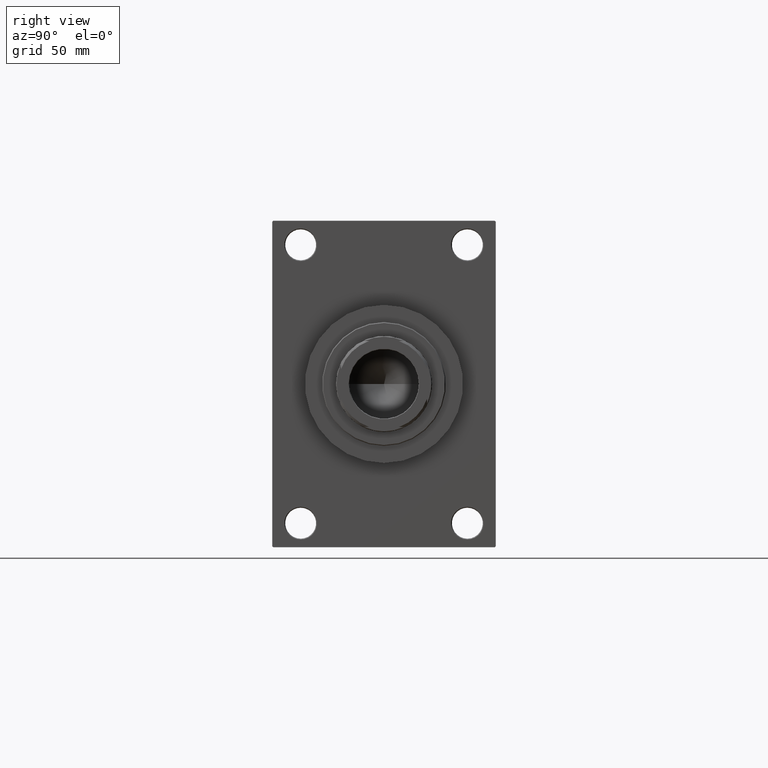
[diagram: clean part render]
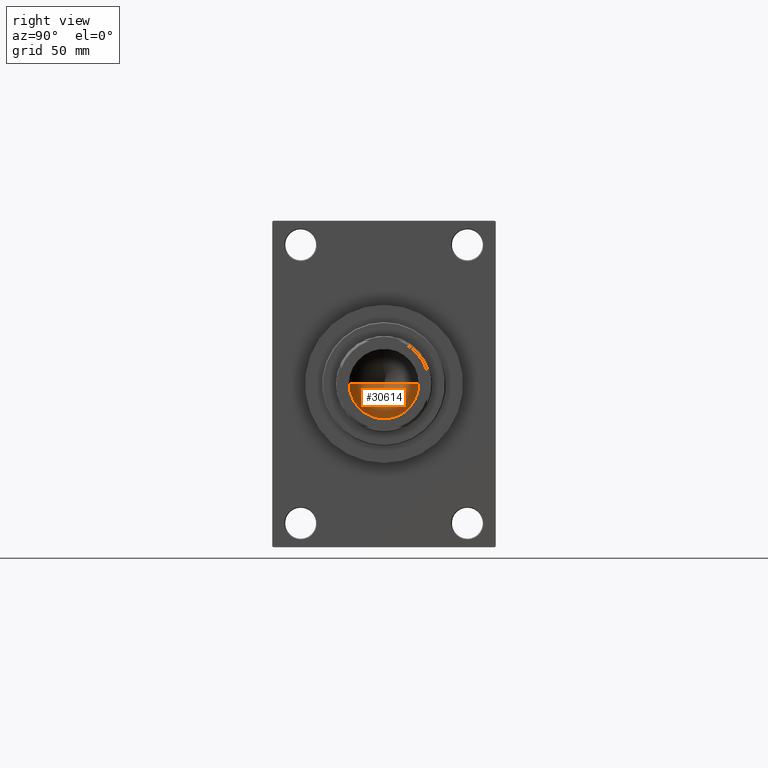
[diagram: same view with one face highlighted and labeled with its STEP entity id]
A machine part, right view. The second image highlights one B-rep face of the part: STEP entity #30614.
In plain terms, the highlighted conical surface has half-angle 59 deg.
Its self-contained STEP definition (entity closure, byte-faithful):
#5174 = DIRECTION ( 'NONE',  ( -0.8571673007021112234, 1.049727191138617340E-16, 0.5150380749100560429 ) ) ;
#5455 = AXIS2_PLACEMENT_3D ( 'NONE', #30603, #5472, #45806 ) ;
#5472 = DIRECTION ( 'NONE',  ( -0.000000000000000000, -0.000000000000000000, 1.000000000000000000 ) ) ;
#8811 = CARTESIAN_POINT ( 'NONE',  ( -20.24999999999998934, 2.479909768273389117E-15, 232.0000000000000284 ) ) ;
#9440 = VERTEX_POINT ( 'NONE', #40419 ) ;
#9760 = LINE ( 'NONE', #8811, #21845 ) ;
#11380 = DIRECTION ( 'NONE',  ( 1.000000000000000000, 0.000000000000000000, 0.000000000000000000 ) ) ;
#12018 = CARTESIAN_POINT ( 'NONE',  ( 20.24999999999998934, 0.000000000000000000, 232.0000000000000284 ) ) ;
#12359 = EDGE_CURVE ( 'NONE', #28193, #9440, #14734, .T. ) ;
#14013 = ORIENTED_EDGE ( 'NONE', *, *, #24627, .T. ) ;
#14734 = CIRCLE ( 'NONE', #5455, 20.24999999999998934 ) ;
#15386 = DIRECTION ( 'NONE',  ( 0.8571673007021112234, 0.000000000000000000, 0.5150380749100560429 ) ) ;
#15537 = ORIENTED_EDGE ( 'NONE', *, *, #20214, .F. ) ;
#16660 = CARTESIAN_POINT ( 'NONE',  ( -1.584115414415908206E-14, 0.000000000000000000, 219.8325724646919070 ) ) ;
#16829 = CONICAL_SURFACE ( 'NONE', #26094, 20.24999999999998934, 1.029744258676652313 ) ;
#17054 = VERTEX_POINT ( 'NONE', #16660 ) ;
#20214 = EDGE_CURVE ( 'NONE', #17054, #9440, #9760, .T. ) ;
#21845 = VECTOR ( 'NONE', #5174, 1000.000000000000000 ) ;
#24627 = EDGE_CURVE ( 'NONE', #17054, #28193, #30370, .T. ) ;
#26094 = AXIS2_PLACEMENT_3D ( 'NONE', #41300, #34069, #11380 ) ;
#26565 = VECTOR ( 'NONE', #15386, 1000.000000000000000 ) ;
#28193 = VERTEX_POINT ( 'NONE', #43432 ) ;
#30241 = ORIENTED_EDGE ( 'NONE', *, *, #12359, .T. ) ;
#30370 = LINE ( 'NONE', #12018, #26565 ) ;
#30603 = CARTESIAN_POINT ( 'NONE',  ( 0.000000000000000000, 0.000000000000000000, 232.0000000000000284 ) ) ;
#30614 = ADVANCED_FACE ( 'NONE', ( #33829 ), #16829, .F. ) ;
#33829 = FACE_OUTER_BOUND ( 'NONE', #47144, .T. ) ;
#34069 = DIRECTION ( 'NONE',  ( -0.000000000000000000, -0.000000000000000000, 1.000000000000000000 ) ) ;
#40419 = CARTESIAN_POINT ( 'NONE',  ( -20.24999999999998934, 2.479909768273389117E-15, 232.0000000000000284 ) ) ;
#41300 = CARTESIAN_POINT ( 'NONE',  ( 0.000000000000000000, 0.000000000000000000, 232.0000000000000284 ) ) ;
#43432 = CARTESIAN_POINT ( 'NONE',  ( 20.24999999999998934, 0.000000000000000000, 232.0000000000000284 ) ) ;
#45806 = DIRECTION ( 'NONE',  ( 1.000000000000000000, 0.000000000000000000, 0.000000000000000000 ) ) ;
#47144 = EDGE_LOOP ( 'NONE', ( #15537, #14013, #30241 ) ) ;